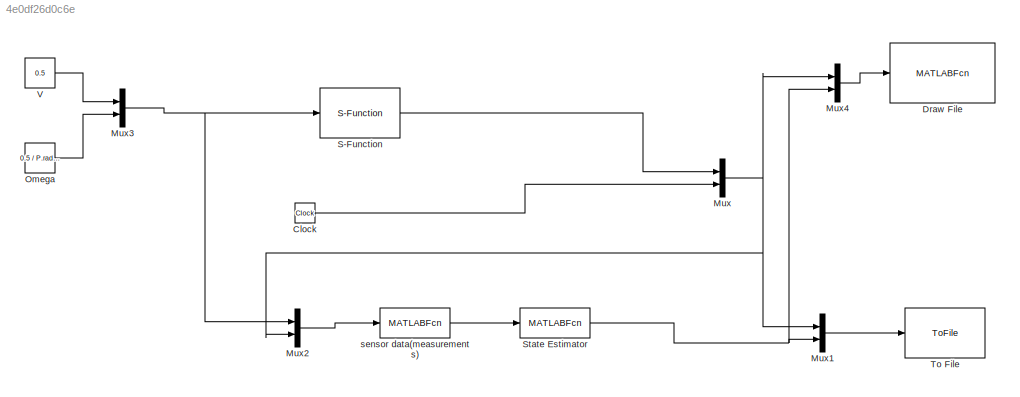
MODEL slx_4e0df26d0c6e
KIND model
CONFIG AbsTol = auto
CONFIG EnableMultiTasking = off
CONFIG FixedStep = auto
CONFIG MaxStep = auto
CONFIG MinStep = auto
CONFIG RelTol = 1e-3
CONFIG SampleTimeConstraint = Unconstrained
CONFIG SolverName = VariableStepAuto
CONFIG StartTime = 0.0
CONFIG StopTime = P.SimTime
BLOCK [MATLABFcn]  sensor data(measurements) 
  MATLABFcn = Sensor_model_v4(u,P)
  OutputDimensions = 3*P.NumLm + 2 + 1
  Ports = [1, 1]
BLOCK [Clock] Clock
BLOCK [MATLABFcn] Draw File 
  MATLABFcn = drawvehicle4(u,P)
  OutputDimensions = 0
  Ports = [1]
BLOCK [Mux] Mux
  DisplayOption = bar
  Inputs = 2
  Ports = [2, 1]
BLOCK [Mux] Mux1
  DisplayOption = bar
  Inputs = 2
  Ports = [2, 1]
BLOCK [Mux] Mux2
  DisplayOption = bar
  Inputs = 2
  Ports = [2, 1]
BLOCK [Mux] Mux3
  DisplayOption = bar
  Inputs = 2
  Ports = [2, 1]
BLOCK [Mux] Mux4
  DisplayOption = bar
  Inputs = 2
  Ports = [2, 1]
BLOCK [Constant] Omega
  Value = 0.5 / P.radius
BLOCK [S-Function] S-Function
  EnableBusSupport = off
  FunctionName = vehicle4
  Parameters = P
  Ports = [1, 1]
  SFcnIsStateOwnerBlock = off
  SFunctionDeploymentMode = off
BLOCK [MATLABFcn] State Estimator 
  MATLABFcn = Estimator_SLAML3(u,P)
  OutputDimensions = 10
  Ports = [1, 1]
BLOCK [ToFile] To File
  Filename = Plotfile4.mat
  MatrixName = dat
  Ports = [1]
  SaveFormat = Timeseries
BLOCK [Constant] V
  Value = 0.5
LINE  sensor data(measurements) :1 -> State Estimator :1
LINE Clock:1 -> Mux:2
LINE Mux1:1 -> To File:1
LINE Mux2:1 ->  sensor data(measurements) :1
NET Mux3:1 -> Mux2:1, S-Function:1
LINE Mux4:1 -> Draw File :1
NET Mux:1 -> Mux1:1, Mux2:2, Mux4:1
LINE Omega:1 -> Mux3:2
LINE S-Function:1 -> Mux:1
NET State Estimator :1 -> Mux1:2, Mux4:2
LINE V:1 -> Mux3:1
note: NET lines group one-source signal fan-out (src -> all destinations, sorted); 1:1 wires keep LINE
